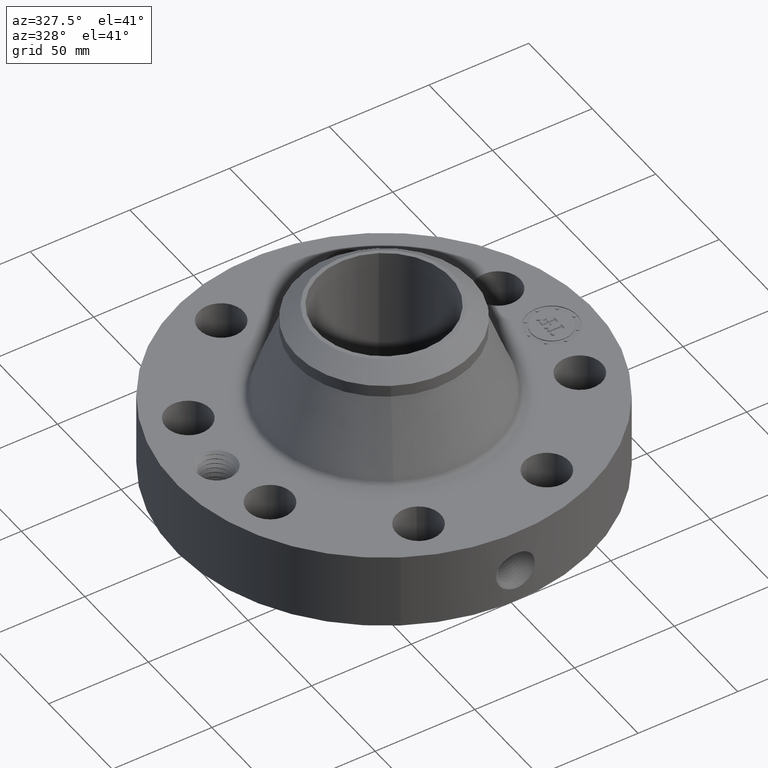
[diagram: clean part render]
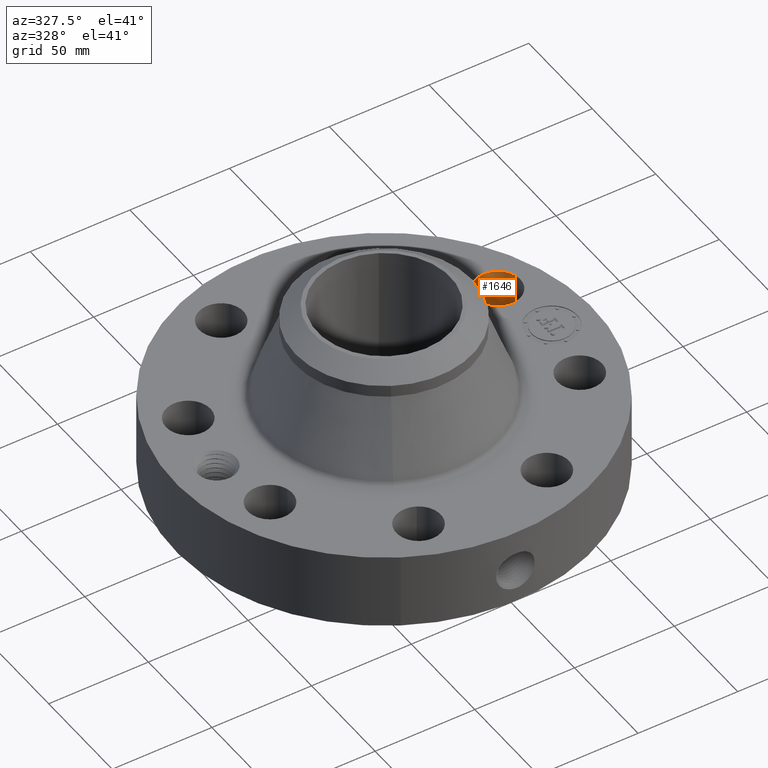
[diagram: same view with one face highlighted and labeled with its STEP entity id]
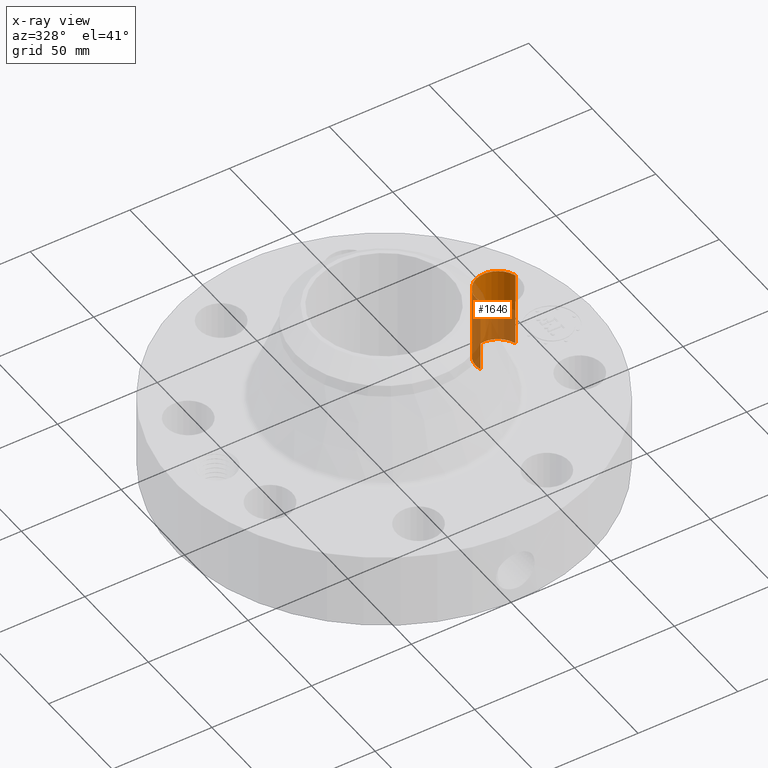
[diagram: x-ray of the same camera — body ghosted, the highlighted face saturated]
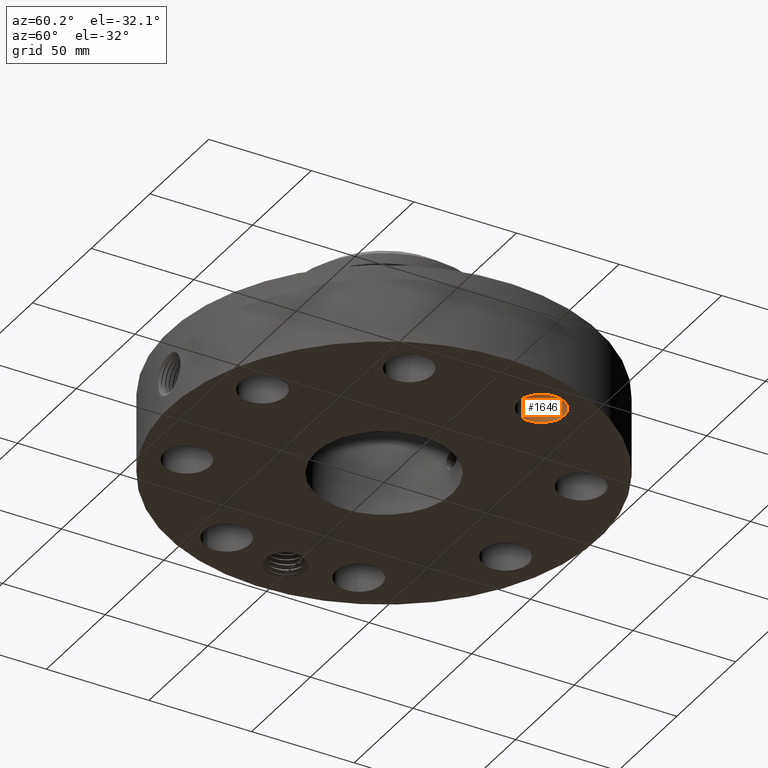
[diagram: same view with one face highlighted and labeled with its STEP entity id]
A machine part, auxiliary view. The second image highlights one B-rep face of the part: STEP entity #1646.
The next image is the same camera in x-ray: the body ghosted, the highlighted face saturated — about 61% of this face is hidden behind the body in this view.
A second angle (auxiliary view) of the same face is appended — the face is thin or edge-on in the first view.
In plain terms, the highlighted cylindrical surface (edge-blend (fillet) strip) has radius 11.176 mm, axis along (0, 0, -1).
Its self-contained STEP definition (entity closure, byte-faithful):
#368=AXIS2_PLACEMENT_3D('Circle Axis2P3D',#366,#367,$) ;
#694=AXIS2_PLACEMENT_3D('Circle Axis2P3D',#692,#693,$) ;
#1628=AXIS2_PLACEMENT_3D('Cylinder Axis2P3D',#1625,#1626,#1627) ;
#366=CARTESIAN_POINT('Axis2P3D Location',(3.05804125262,1.26668216113,0.250000000001)) ;
#370=CARTESIAN_POINT('Vertex',(2.63583941543,1.14280476743,0.250000000001)) ;
#372=CARTESIAN_POINT('Vertex',(3.48024308982,1.39055955484,0.250000000001)) ;
#687=CARTESIAN_POINT('Vertex',(3.48024308982,1.39055955484,1.75000000001)) ;
#689=CARTESIAN_POINT('Vertex',(2.63583941543,1.14280476743,1.75000000001)) ;
#692=CARTESIAN_POINT('Axis2P3D Location',(3.05804125262,1.26668216113,1.75000000001)) ;
#1625=CARTESIAN_POINT('Axis2P3D Location',(3.05804125262,1.26668216113,1.74606299213)) ;
#1630=CARTESIAN_POINT('Line Origine',(2.63583941543,1.14280476743,1.)) ;
#1635=CARTESIAN_POINT('Line Origine',(3.48024308982,1.39055955484,1.)) ;
#367=DIRECTION('Axis2P3D Direction',(0.,0.,-0.0393700787402)) ;
#693=DIRECTION('Axis2P3D Direction',(0.,0.,-0.0393700787402)) ;
#1626=DIRECTION('Axis2P3D Direction',(0.,0.,-0.0393700787402)) ;
#1627=DIRECTION('Axis2P3D XDirection',(0.0377775444876,0.0110842335096,0.)) ;
#1631=DIRECTION('Vector Direction',(0.,0.,-0.0393700787402)) ;
#1636=DIRECTION('Vector Direction',(0.,0.,-0.0393700787402)) ;
#1632=VECTOR('Line Direction',#1631,0.0393700787402) ;
#1637=VECTOR('Line Direction',#1636,0.0393700787402) ;
#1641=ORIENTED_EDGE('',*,*,#1634,.F.) ;
#1642=ORIENTED_EDGE('',*,*,#374,.T.) ;
#1643=ORIENTED_EDGE('',*,*,#1639,.T.) ;
#1644=ORIENTED_EDGE('',*,*,#696,.F.) ;
#1646=ADVANCED_FACE('PartBody',(#1645),#1629,.F.) ;
#369=CIRCLE('generated circle',#368,0.440000000002) ;
#695=CIRCLE('generated circle',#694,0.440000000002) ;
#1629=CYLINDRICAL_SURFACE('generated cylinder',#1628,0.440000000002) ;
#374=EDGE_CURVE('',#371,#373,#369,.T.) ;
#696=EDGE_CURVE('',#690,#688,#695,.T.) ;
#1634=EDGE_CURVE('',#371,#690,#1633,.F.) ;
#1639=EDGE_CURVE('',#373,#688,#1638,.F.) ;
#1640=EDGE_LOOP('',(#1641,#1642,#1643,#1644)) ;
#1645=FACE_OUTER_BOUND('',#1640,.T.) ;
#1633=LINE('Line',#1630,#1632) ;
#1638=LINE('Line',#1635,#1637) ;
#371=VERTEX_POINT('',#370) ;
#373=VERTEX_POINT('',#372) ;
#688=VERTEX_POINT('',#687) ;
#690=VERTEX_POINT('',#689) ;